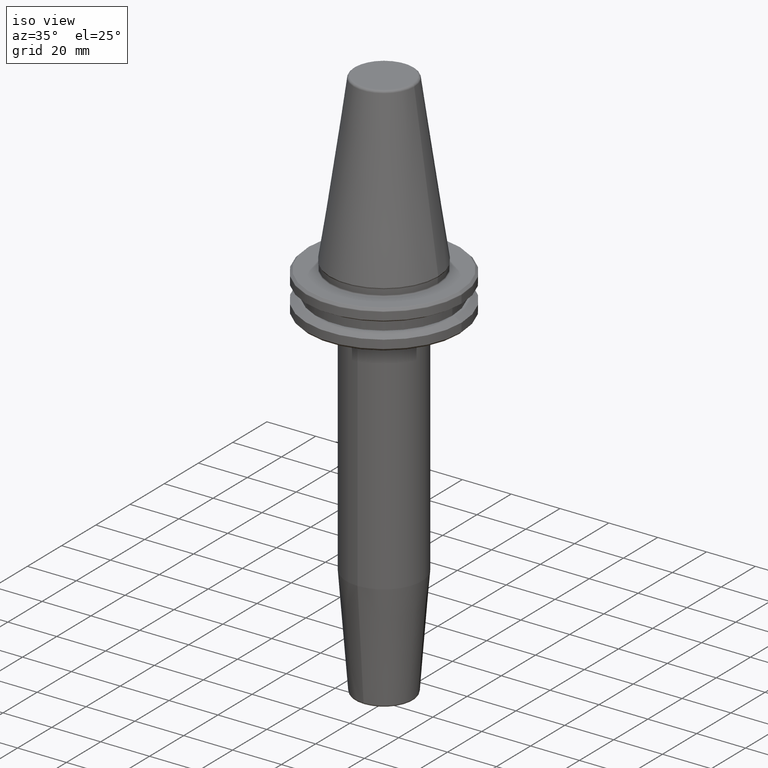
[diagram: clean part render]
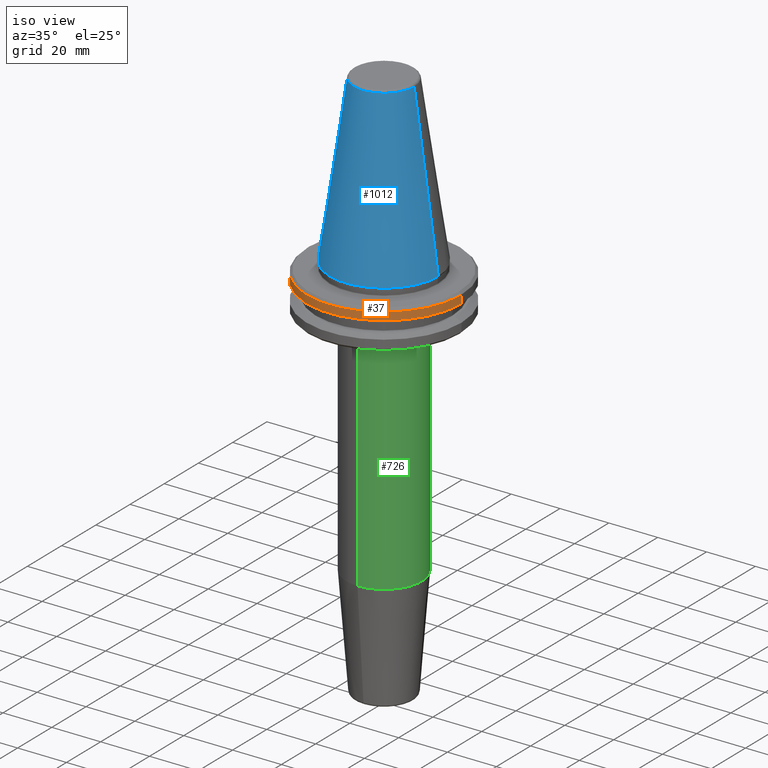
[diagram: same view with three faces highlighted in distinct colors, each labeled with its STEP entity id]
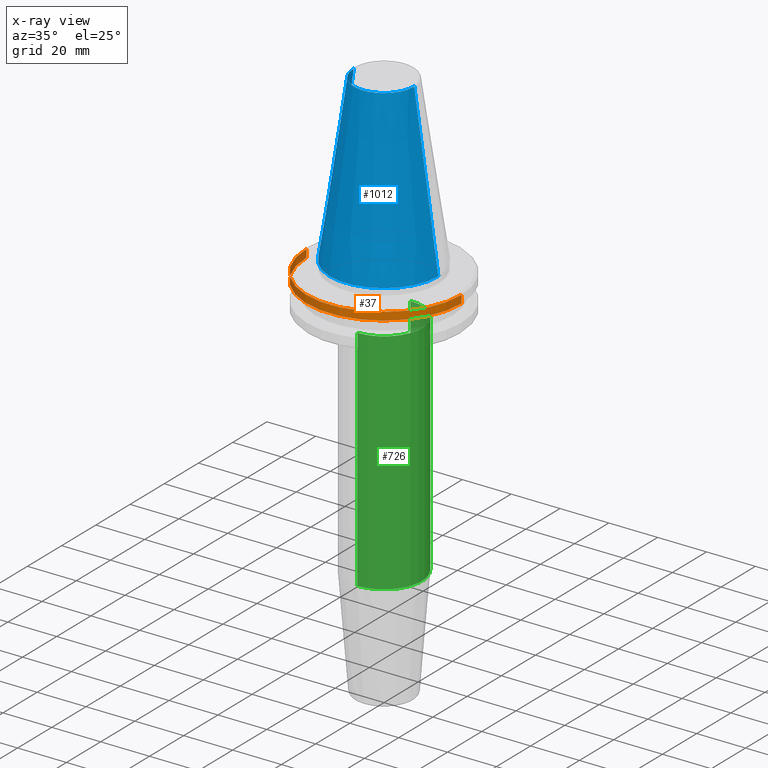
[diagram: x-ray of the same camera — body ghosted, the three highlighted faces saturated]
A machine part, iso view with three faces highlighted in distinct colors.
The next image is the same camera in x-ray (body ghosted, the three faces saturated) — at least one of them is partly hidden behind the body in this view.
Their STEP definitions:

[orange] entity #37 — the highlighted cylindrical surface (partial cylindrical patch) has radius 31.75 mm, axis along (-0, -0, 1).
#3 = ORIENTED_EDGE ( 'NONE', *, *, #633, .F. ) ;
#37 = ADVANCED_FACE ( 'NONE', ( #348 ), #1073, .T. ) ;
#63 = AXIS2_PLACEMENT_3D ( 'NONE', #476, #472, #1217 ) ;
#92 = LINE ( 'NONE', #250, #1106 ) ;
#122 = ORIENTED_EDGE ( 'NONE', *, *, #313, .T. ) ;
#220 = AXIS2_PLACEMENT_3D ( 'NONE', #1069, #696, #1241 ) ;
#250 = CARTESIAN_POINT ( 'NONE',  ( 31.75000000000000000, 0.0000000000000000000, 113.5216080541959500 ) ) ;
#288 = DIRECTION ( 'NONE',  ( -0.0000000000000000000, -0.0000000000000000000, 1.000000000000000000 ) ) ;
#313 = EDGE_CURVE ( 'NONE', #944, #878, #92, .T. ) ;
#321 = CARTESIAN_POINT ( 'NONE',  ( -31.75000000000000000, 3.888253587292846500E-015, 113.5216080541959500 ) ) ;
#322 = CARTESIAN_POINT ( 'NONE',  ( 0.0000000000000000000, 0.0000000000000000000, -7.578163357943284800 ) ) ;
#348 = FACE_OUTER_BOUND ( 'NONE', #1104, .T. ) ;
#439 = ORIENTED_EDGE ( 'NONE', *, *, #514, .T. ) ;
#472 = DIRECTION ( 'NONE',  ( -0.0000000000000000000, -0.0000000000000000000, 1.000000000000000000 ) ) ;
#476 = CARTESIAN_POINT ( 'NONE',  ( 0.0000000000000000000, 0.0000000000000000000, -4.365685424949250000 ) ) ;
#514 = EDGE_CURVE ( 'NONE', #660, #944, #756, .T. ) ;
#526 = CARTESIAN_POINT ( 'NONE',  ( 31.75000000000000000, 0.0000000000000000000, -7.578163357943284800 ) ) ;
#585 = CIRCLE ( 'NONE', #63, 31.75000000000000000 ) ;
#620 = CARTESIAN_POINT ( 'NONE',  ( -31.75000000000000000, 3.888253587292846500E-015, -7.578163357943284800 ) ) ;
#633 = EDGE_CURVE ( 'NONE', #645, #878, #585, .T. ) ;
#645 = VERTEX_POINT ( 'NONE', #897 ) ;
#660 = VERTEX_POINT ( 'NONE', #620 ) ;
#696 = DIRECTION ( 'NONE',  ( -0.0000000000000000000, -0.0000000000000000000, 1.000000000000000000 ) ) ;
#756 = CIRCLE ( 'NONE', #1229, 31.75000000000000000 ) ;
#763 = EDGE_CURVE ( 'NONE', #660, #645, #900, .T. ) ;
#878 = VERTEX_POINT ( 'NONE', #978 ) ;
#893 = DIRECTION ( 'NONE',  ( -0.0000000000000000000, -0.0000000000000000000, 1.000000000000000000 ) ) ;
#897 = CARTESIAN_POINT ( 'NONE',  ( -31.75000000000000000, 3.888253587292846500E-015, -4.365685424949250000 ) ) ;
#900 = LINE ( 'NONE', #321, #1151 ) ;
#944 = VERTEX_POINT ( 'NONE', #526 ) ;
#972 = ORIENTED_EDGE ( 'NONE', *, *, #763, .F. ) ;
#978 = CARTESIAN_POINT ( 'NONE',  ( 31.75000000000000000, 0.0000000000000000000, -4.365685424949250000 ) ) ;
#1069 = CARTESIAN_POINT ( 'NONE',  ( 0.0000000000000000000, 0.0000000000000000000, 113.5216080541959500 ) ) ;
#1073 = CYLINDRICAL_SURFACE ( 'NONE', #220, 31.75000000000000000 ) ;
#1077 = DIRECTION ( 'NONE',  ( -0.0000000000000000000, -0.0000000000000000000, 1.000000000000000000 ) ) ;
#1086 = DIRECTION ( 'NONE',  ( 1.000000000000000000, 0.0000000000000000000, 0.0000000000000000000 ) ) ;
#1104 = EDGE_LOOP ( 'NONE', ( #972, #439, #122, #3 ) ) ;
#1106 = VECTOR ( 'NONE', #288, 1000.000000000000000 ) ;
#1151 = VECTOR ( 'NONE', #1077, 1000.000000000000000 ) ;
#1217 = DIRECTION ( 'NONE',  ( 1.000000000000000000, 0.0000000000000000000, 0.0000000000000000000 ) ) ;
#1229 = AXIS2_PLACEMENT_3D ( 'NONE', #322, #893, #1086 ) ;
#1241 = DIRECTION ( 'NONE',  ( 1.000000000000000000, 0.0000000000000000000, 0.0000000000000000000 ) ) ;

[blue] entity #1012 — the highlighted conical surface has half-angle 8.297 deg.
#70 = CARTESIAN_POINT ( 'NONE',  ( 0.0000000000000000000, 0.0000000000000000000, 67.54430822726729400 ) ) ;
#83 = CARTESIAN_POINT ( 'NONE',  ( 12.37469537611110800, 1.515463108277802100E-015, 67.54430822726729400 ) ) ;
#109 = AXIS2_PLACEMENT_3D ( 'NONE', #1144, #584, #1239 ) ;
#138 = EDGE_LOOP ( 'NONE', ( #676, #684, #172, #270 ) ) ;
#172 = ORIENTED_EDGE ( 'NONE', *, *, #564, .T. ) ;
#188 = CARTESIAN_POINT ( 'NONE',  ( 22.22500000000000500, 0.0000000000000000000, 0.0000000000000000000 ) ) ;
#232 = CONICAL_SURFACE ( 'NONE', #701, 12.37469537611110800, 0.1448138465474191100 ) ;
#270 = ORIENTED_EDGE ( 'NONE', *, *, #1155, .T. ) ;
#283 = CARTESIAN_POINT ( 'NONE',  ( 0.0000000000000000000, 0.0000000000000000000, 67.54430822726729400 ) ) ;
#303 = DIRECTION ( 'NONE',  ( 0.1443082272673071000, 1.767266086135364600E-017, -0.9895327864921743500 ) ) ;
#305 = VERTEX_POINT ( 'NONE', #188 ) ;
#332 = LINE ( 'NONE', #83, #1031 ) ;
#390 = DIRECTION ( 'NONE',  ( 1.000000000000000000, 0.0000000000000000000, 0.0000000000000000000 ) ) ;
#538 = FACE_OUTER_BOUND ( 'NONE', #138, .T. ) ;
#564 = EDGE_CURVE ( 'NONE', #976, #1136, #705, .T. ) ;
#584 = DIRECTION ( 'NONE',  ( -0.0000000000000000000, -0.0000000000000000000, 1.000000000000000000 ) ) ;
#674 = CIRCLE ( 'NONE', #109, 22.22500000000000500 ) ;
#676 = ORIENTED_EDGE ( 'NONE', *, *, #713, .F. ) ;
#684 = ORIENTED_EDGE ( 'NONE', *, *, #1148, .F. ) ;
#701 = AXIS2_PLACEMENT_3D ( 'NONE', #70, #975, #758 ) ;
#705 = LINE ( 'NONE', #825, #1177 ) ;
#713 = EDGE_CURVE ( 'NONE', #1222, #305, #332, .T. ) ;
#758 = DIRECTION ( 'NONE',  ( -1.000000000000000000, 0.0000000000000000000, 0.0000000000000000000 ) ) ;
#825 = CARTESIAN_POINT ( 'NONE',  ( -12.37469537611110800, 0.0000000000000000000, 67.54430822726729400 ) ) ;
#903 = CIRCLE ( 'NONE', #1172, 12.37469537611110800 ) ;
#932 = DIRECTION ( 'NONE',  ( -0.1443082272673071000, 0.0000000000000000000, -0.9895327864921743500 ) ) ;
#962 = DIRECTION ( 'NONE',  ( -0.0000000000000000000, -0.0000000000000000000, 1.000000000000000000 ) ) ;
#975 = DIRECTION ( 'NONE',  ( 0.0000000000000000000, 0.0000000000000000000, -1.000000000000000000 ) ) ;
#976 = VERTEX_POINT ( 'NONE', #1039 ) ;
#997 = CARTESIAN_POINT ( 'NONE',  ( -22.22500000000000500, 2.721777511104993200E-015, 0.0000000000000000000 ) ) ;
#1012 = ADVANCED_FACE ( 'NONE', ( #538 ), #232, .T. ) ;
#1031 = VECTOR ( 'NONE', #303, 1000.000000000000000 ) ;
#1039 = CARTESIAN_POINT ( 'NONE',  ( -12.37469537611110800, 0.0000000000000000000, 67.54430822726729400 ) ) ;
#1136 = VERTEX_POINT ( 'NONE', #997 ) ;
#1144 = CARTESIAN_POINT ( 'NONE',  ( 0.0000000000000000000, 0.0000000000000000000, 0.0000000000000000000 ) ) ;
#1148 = EDGE_CURVE ( 'NONE', #976, #1222, #903, .T. ) ;
#1149 = CARTESIAN_POINT ( 'NONE',  ( 12.37469537611110800, 2.118620309691397700E-015, 67.54430822726729400 ) ) ;
#1155 = EDGE_CURVE ( 'NONE', #1136, #305, #674, .T. ) ;
#1172 = AXIS2_PLACEMENT_3D ( 'NONE', #283, #962, #390 ) ;
#1177 = VECTOR ( 'NONE', #932, 1000.000000000000000 ) ;
#1222 = VERTEX_POINT ( 'NONE', #1149 ) ;
#1239 = DIRECTION ( 'NONE',  ( 1.000000000000000000, 0.0000000000000000000, 0.0000000000000000000 ) ) ;

[green] entity #726 — the highlighted cylindrical surface (partial cylindrical patch) has radius 15.5 mm, axis along (-0, 0, -1).
#98 = CARTESIAN_POINT ( 'NONE',  ( 0.0000000000000000000, 15.50000000000000000, -20.98284271247460400 ) ) ;
#103 = DIRECTION ( 'NONE',  ( -0.0000000000000000000, 1.256330602389183300E-016, -1.000000000000000000 ) ) ;
#121 = AXIS2_PLACEMENT_3D ( 'NONE', #693, #103, #787 ) ;
#134 = ORIENTED_EDGE ( 'NONE', *, *, #728, .T. ) ;
#231 = VECTOR ( 'NONE', #523, 1000.000000000000000 ) ;
#241 = CARTESIAN_POINT ( 'NONE',  ( 0.0000000000000000000, 4.467959865220142400E-016, -160.0000000000000000 ) ) ;
#248 = ORIENTED_EDGE ( 'NONE', *, *, #664, .F. ) ;
#337 = DIRECTION ( 'NONE',  ( -0.0000000000000000000, 1.256330602389183300E-016, -1.000000000000000000 ) ) ;
#382 = VERTEX_POINT ( 'NONE', #963 ) ;
#413 = DIRECTION ( 'NONE',  ( 0.0000000000000000000, 1.000000000000000000, 0.0000000000000000000 ) ) ;
#436 = EDGE_CURVE ( 'NONE', #751, #1174, #1044, .T. ) ;
#458 = AXIS2_PLACEMENT_3D ( 'NONE', #1079, #987, #795 ) ;
#485 = AXIS2_PLACEMENT_3D ( 'NONE', #241, #909, #413 ) ;
#499 = CARTESIAN_POINT ( 'NONE',  ( 1.898202538678400300E-015, -15.50000000000003400, -20.98284271247461100 ) ) ;
#503 = FACE_OUTER_BOUND ( 'NONE', #522, .T. ) ;
#522 = EDGE_LOOP ( 'NONE', ( #1008, #134, #687, #248 ) ) ;
#523 = DIRECTION ( 'NONE',  ( -0.0000000000000000000, 1.256330602389183300E-016, -1.000000000000000000 ) ) ;
#664 = EDGE_CURVE ( 'NONE', #751, #833, #827, .T. ) ;
#687 = ORIENTED_EDGE ( 'NONE', *, *, #1092, .F. ) ;
#693 = CARTESIAN_POINT ( 'NONE',  ( 0.0000000000000000000, -5.256097865015170500E-015, -114.6067425191115900 ) ) ;
#697 = CARTESIAN_POINT ( 'NONE',  ( 1.898202538678398700E-015, -15.50000000000001100, -160.0000000000000000 ) ) ;
#712 = CIRCLE ( 'NONE', #121, 15.50000000000000500 ) ;
#726 = ADVANCED_FACE ( 'NONE', ( #503 ), #934, .T. ) ;
#728 = EDGE_CURVE ( 'NONE', #1174, #382, #966, .T. ) ;
#751 = VERTEX_POINT ( 'NONE', #98 ) ;
#767 = VECTOR ( 'NONE', #337, 1000.000000000000000 ) ;
#787 = DIRECTION ( 'NONE',  ( 0.0000000000000000000, 1.000000000000000000, 0.0000000000000000000 ) ) ;
#795 = DIRECTION ( 'NONE',  ( 0.0000000000000000000, 1.000000000000000000, 2.238352872228135700E-016 ) ) ;
#801 = CARTESIAN_POINT ( 'NONE',  ( 0.0000000000000000000, 15.50000000000001100, -160.0000000000000000 ) ) ;
#827 = LINE ( 'NONE', #801, #767 ) ;
#833 = VERTEX_POINT ( 'NONE', #1150 ) ;
#909 = DIRECTION ( 'NONE',  ( -0.0000000000000000000, 1.256330602389183300E-016, -1.000000000000000000 ) ) ;
#934 = CYLINDRICAL_SURFACE ( 'NONE', #485, 15.50000000000001100 ) ;
#963 = CARTESIAN_POINT ( 'NONE',  ( 0.0000000000000000000, -15.50000000000001100, -114.6067425191115900 ) ) ;
#966 = LINE ( 'NONE', #697, #231 ) ;
#987 = DIRECTION ( 'NONE',  ( -0.0000000000000000000, 1.256330602389183300E-016, -1.000000000000000000 ) ) ;
#1008 = ORIENTED_EDGE ( 'NONE', *, *, #436, .T. ) ;
#1044 = CIRCLE ( 'NONE', #458, 15.50000000000001800 ) ;
#1079 = CARTESIAN_POINT ( 'NONE',  ( 0.0000000000000000000, -1.701835490922485000E-014, -20.98284271247460700 ) ) ;
#1092 = EDGE_CURVE ( 'NONE', #833, #382, #712, .T. ) ;
#1150 = CARTESIAN_POINT ( 'NONE',  ( 1.898202538678398000E-015, 15.50000000000000000, -114.6067425191115900 ) ) ;
#1174 = VERTEX_POINT ( 'NONE', #499 ) ;